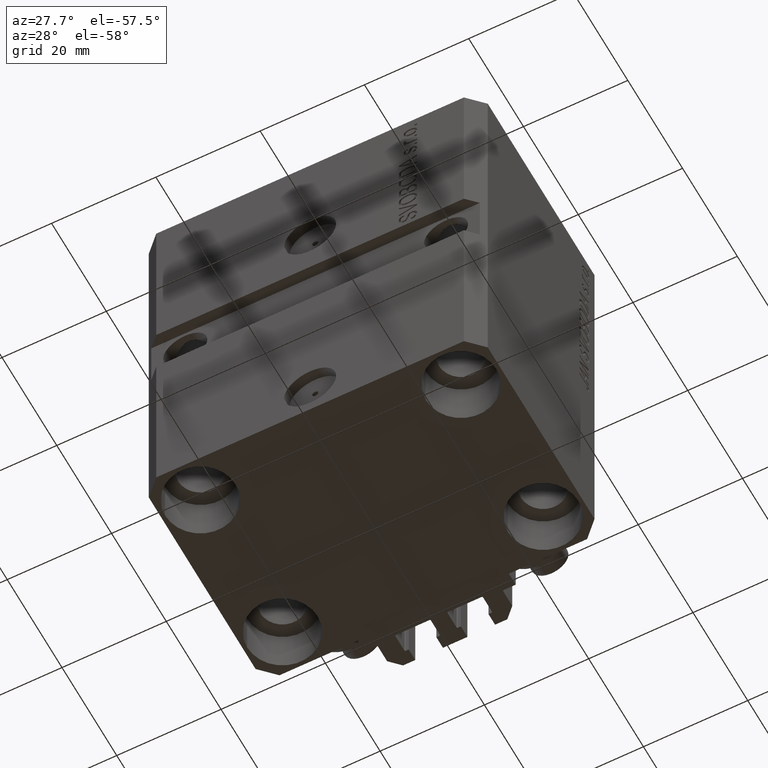
[diagram: clean part render]
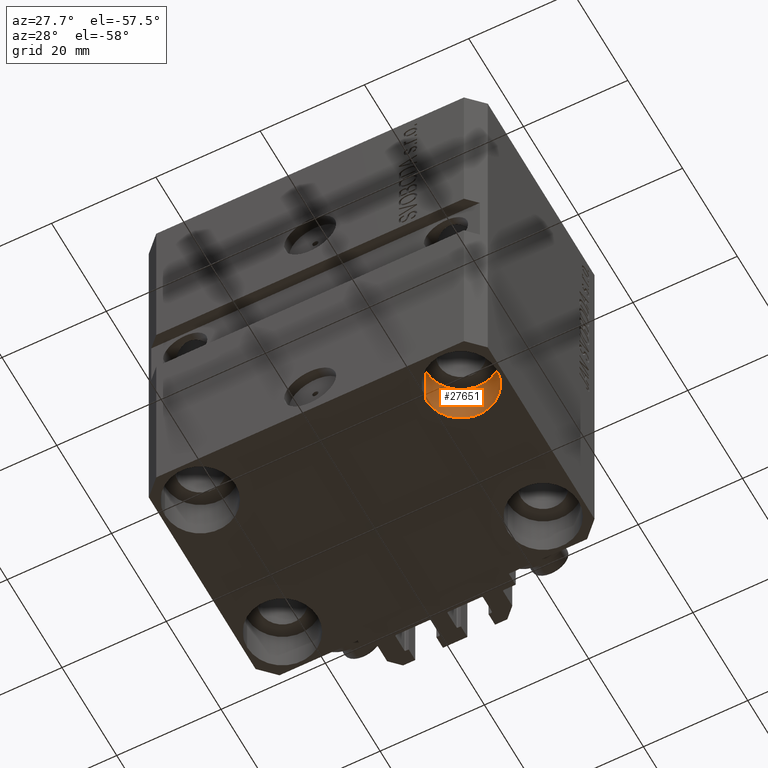
[diagram: same view with one face highlighted and labeled with its STEP entity id]
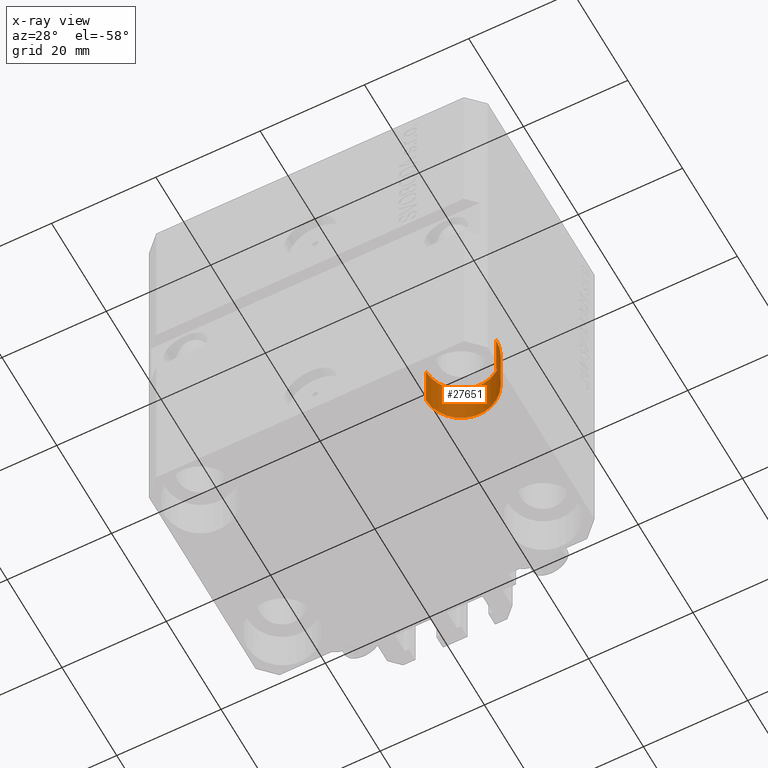
[diagram: x-ray of the same camera — body ghosted, the highlighted face saturated]
A machine part, auxiliary view. The second image highlights one B-rep face of the part: STEP entity #27651.
The next image is the same camera in x-ray: the body ghosted, the highlighted face saturated — about 0% of this face is hidden behind the body in this view.
In plain terms, the highlighted cylindrical surface (partial cylindrical patch) has radius 6.75 mm, axis along (-0, -0, -1).
Its self-contained STEP definition (entity closure, byte-faithful):
#1304 = EDGE_CURVE ( 'NONE', #44833, #5914, #29006, .T. ) ;
#1569 = AXIS2_PLACEMENT_3D ( 'NONE', #25570, #17943, #4060 ) ;
#2138 = DIRECTION ( 'NONE',  ( 1.000000000000000000, 0.000000000000000000, 0.000000000000000000 ) ) ;
#4060 = DIRECTION ( 'NONE',  ( -1.000000000000000000, 0.000000000000000000, 0.000000000000000000 ) ) ;
#4907 = ORIENTED_EDGE ( 'NONE', *, *, #1304, .T. ) ;
#4990 = CARTESIAN_POINT ( 'NONE',  ( 31.74999999997746869, -15.00000000000000000, -68.00000000000000000 ) ) ;
#5478 = CARTESIAN_POINT ( 'NONE',  ( 25.00000000000000355, -15.00000000000000000, -68.00000000000000000 ) ) ;
#5886 = ORIENTED_EDGE ( 'NONE', *, *, #32138, .F. ) ;
#5914 = VERTEX_POINT ( 'NONE', #7434 ) ;
#7434 = CARTESIAN_POINT ( 'NONE',  ( 18.25000000002253842, -15.00000000000000000, -77.00000000000000000 ) ) ;
#11748 = CIRCLE ( 'NONE', #33860, 6.749999999977465137 ) ;
#12970 = CARTESIAN_POINT ( 'NONE',  ( 25.00000000000000355, -15.00000000000000000, -77.00000000000000000 ) ) ;
#17223 = DIRECTION ( 'NONE',  ( -0.000000000000000000, -0.000000000000000000, 1.000000000000000000 ) ) ;
#17943 = DIRECTION ( 'NONE',  ( -0.000000000000000000, -0.000000000000000000, -1.000000000000000000 ) ) ;
#20752 = DIRECTION ( 'NONE',  ( -0.000000000000000000, -0.000000000000000000, 1.000000000000000000 ) ) ;
#21137 = EDGE_CURVE ( 'NONE', #23032, #5914, #32786, .T. ) ;
#21282 = CYLINDRICAL_SURFACE ( 'NONE', #1569, 6.749999999977465137 ) ;
#22529 = CARTESIAN_POINT ( 'NONE',  ( 18.25000000002253842, -15.00000000000000000, -68.00000000000000000 ) ) ;
#23032 = VERTEX_POINT ( 'NONE', #34950 ) ;
#24174 = DIRECTION ( 'NONE',  ( 1.000000000000000000, 0.000000000000000000, 0.000000000000000000 ) ) ;
#25193 = DIRECTION ( 'NONE',  ( -0.000000000000000000, -0.000000000000000000, -1.000000000000000000 ) ) ;
#25570 = CARTESIAN_POINT ( 'NONE',  ( 25.00000000000000355, -15.00000000000000000, -68.00000000000000000 ) ) ;
#26179 = ORIENTED_EDGE ( 'NONE', *, *, #35232, .T. ) ;
#27651 = ADVANCED_FACE ( 'NONE', ( #39647 ), #21282, .F. ) ;
#29006 = LINE ( 'NONE', #22529, #46264 ) ;
#29599 = VERTEX_POINT ( 'NONE', #4990 ) ;
#30522 = AXIS2_PLACEMENT_3D ( 'NONE', #12970, #17223, #24174 ) ;
#32138 = EDGE_CURVE ( 'NONE', #29599, #23032, #39965, .T. ) ;
#32786 = CIRCLE ( 'NONE', #30522, 6.749999999977465137 ) ;
#32812 = DIRECTION ( 'NONE',  ( -0.000000000000000000, -0.000000000000000000, -1.000000000000000000 ) ) ;
#32853 = ORIENTED_EDGE ( 'NONE', *, *, #21137, .F. ) ;
#33120 = EDGE_LOOP ( 'NONE', ( #5886, #26179, #4907, #32853 ) ) ;
#33860 = AXIS2_PLACEMENT_3D ( 'NONE', #5478, #20752, #2138 ) ;
#34950 = CARTESIAN_POINT ( 'NONE',  ( 31.74999999997746869, -15.00000000000000000, -77.00000000000000000 ) ) ;
#35232 = EDGE_CURVE ( 'NONE', #29599, #44833, #11748, .T. ) ;
#39500 = CARTESIAN_POINT ( 'NONE',  ( 31.74999999997746869, -15.00000000000000000, -68.00000000000000000 ) ) ;
#39647 = FACE_OUTER_BOUND ( 'NONE', #33120, .T. ) ;
#39965 = LINE ( 'NONE', #39500, #42150 ) ;
#42150 = VECTOR ( 'NONE', #25193, 1000.000000000000000 ) ;
#43069 = CARTESIAN_POINT ( 'NONE',  ( 18.25000000002253842, -15.00000000000000000, -68.00000000000000000 ) ) ;
#44833 = VERTEX_POINT ( 'NONE', #43069 ) ;
#46264 = VECTOR ( 'NONE', #32812, 1000.000000000000000 ) ;